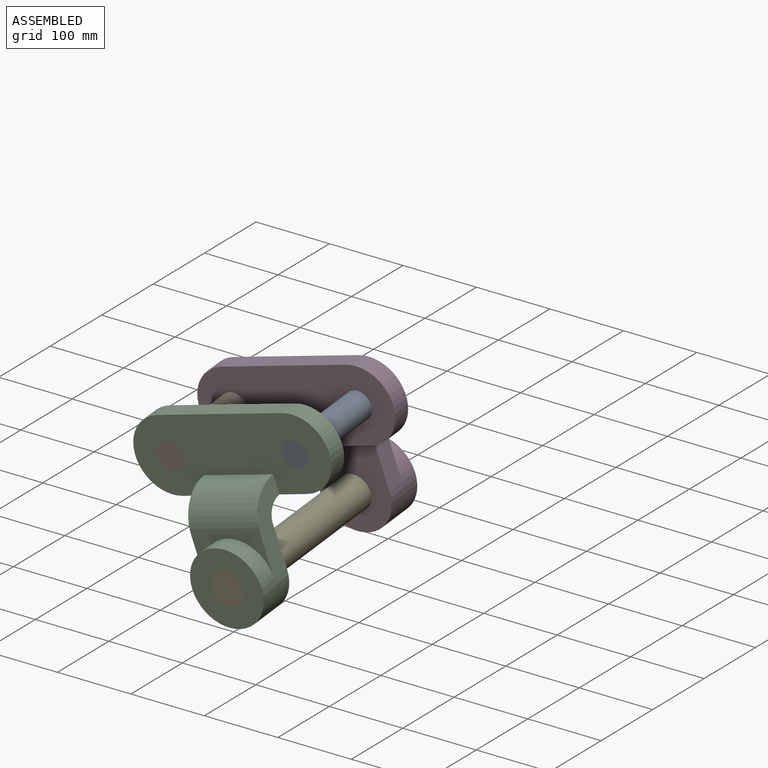
[diagram: assembled view]
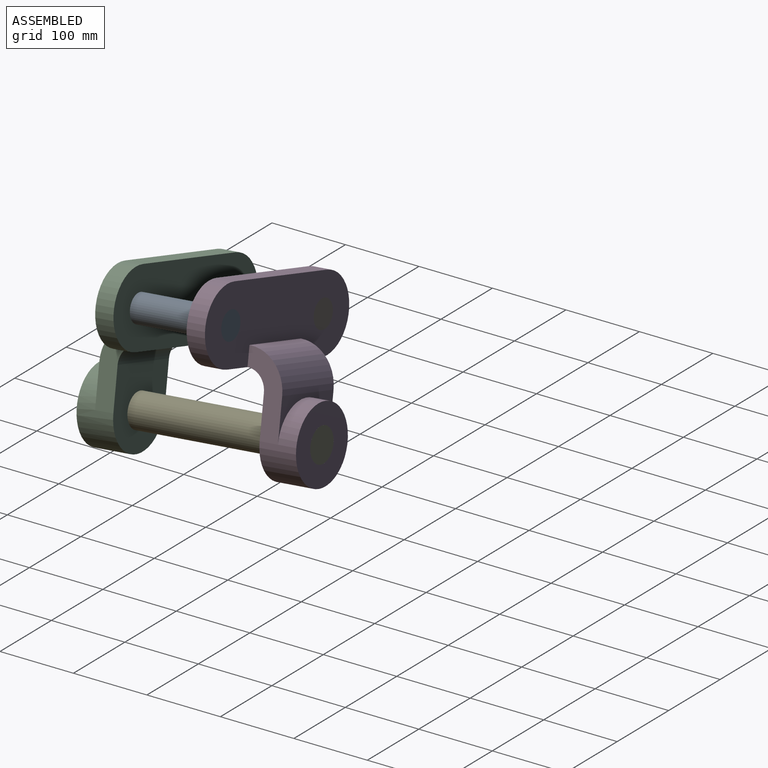
[diagram: assembled view, second angle]
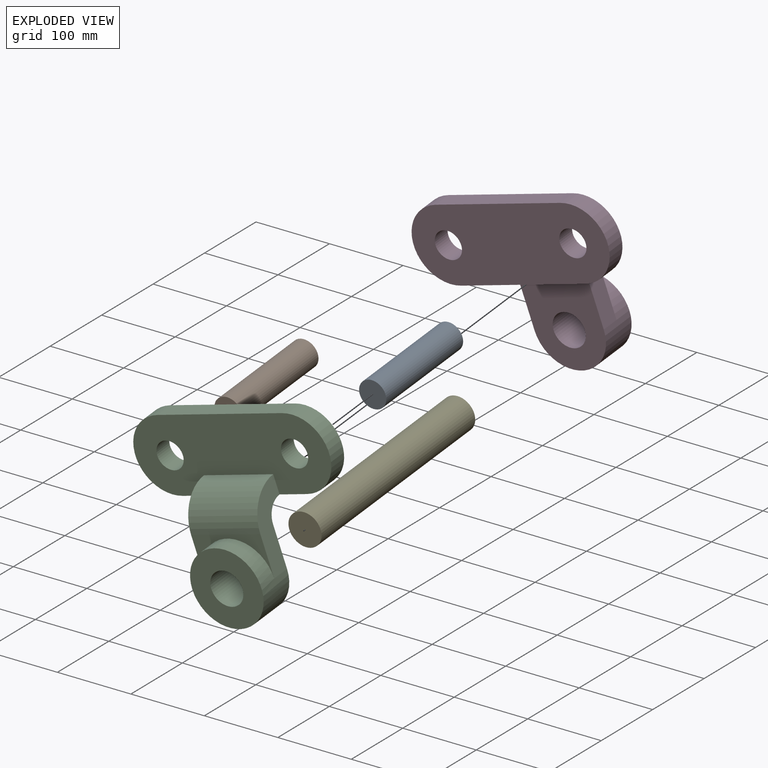
[diagram: exploded view]
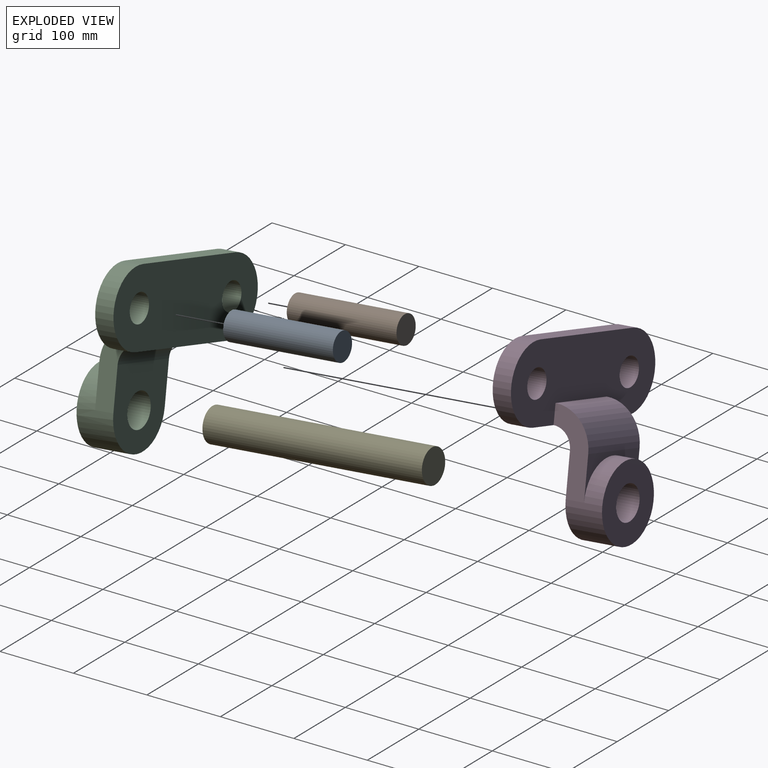
[diagram: exploded view, second angle]
ASSEMBLY  parts=5 mates=5
PART A: 3 faces, bbox 37x150x37 mm
  f0: cylinder r=18.5mm len=150mm, axis (0,1,0), area 17435.8mm2, adj f1,f2
  f1: plane 37x37mm, normal (0,-1,0), area 1075.2mm2, adj f0
  f2: plane 37x37mm, normal (0,1,0), area 1075.2mm2, adj f0
PART B: same geometry as A
PART C: 17 faces, bbox 280x100x230 mm
  f0: plane 180x25mm, normal (0,0,1), area 4500mm2, adj f1,f4,f6,f7,f13
  f1: cylinder r=50mm len=100mm, axis (0,1,0), area 3927mm2, adj f0,f2,f6,f7
  f2: plane 180x25mm, normal (0,0,-1), area 4500mm2, adj f1,f4,f6,f7
  f3: cylinder r=18.5mm len=37mm, axis (0,1,0), area 2906mm2, adj f6,f7
  f4: cylinder r=50mm len=100mm, axis (0,1,0), area 3927mm2, adj f0,f2,f6,f7
  f5: cylinder r=18.5mm len=37mm, axis (0,1,0), area 2906mm2, adj f6,f7
  f6: plane 280x100mm, normal (0,-1,0), area 21203.6mm2, adj f0,f1,f2,f3,f4,f5,f12,f14
  f7: plane 280x100mm, normal (0,1,0), area 23703.6mm2, adj f0,f1,f2,f3,f4,f5
  f8: cylinder r=50mm len=100mm, axis (0,1,0), area 11781mm2, adj f9,f10,f11,f14,f15
  f9: plane 100x100mm, normal (0,-1,0), area 6263.6mm2, adj f8,f16
  f10: plane 105x100mm, normal (0,1,0), area 7836.6mm2, adj f8,f13,f14,f15,f16
  f11: plane 100x55mm, normal (0,-1,0), area 1573mm2, adj f8,f12,f14,f15
  f12: cylinder r=50mm len=100mm, axis (-1,0,0), area 7854mm2, adj f6,f11,f14,f15
  f13: cylinder r=25mm len=100mm, axis (-1,0,0), area 3927mm2, adj f0,f10,f14,f15
  f14: plane 105x50mm, normal (1,0,0), area 2847.6mm2, adj f6,f8,f10,f11,f12,f13
  f15: plane 105x50mm, normal (-1,0,0), area 2847.6mm2, adj f6,f8,f10,f11,f12,f13
  f16: cylinder r=22.5mm len=50mm, axis (0,1,0), area 7068.6mm2, adj f9,f10
PART D: same geometry as C
PART E: 3 faces, bbox 45x300x45 mm
  f0: cylinder r=22.5mm len=300mm, axis (0,1,0), area 42411.5mm2, adj f1,f2
  f1: plane 45x45mm, normal (0,-1,0), area 1590.4mm2, adj f0
  f2: plane 45x45mm, normal (0,1,0), area 1590.4mm2, adj f0
PLACE A rot(axis=(0.01,1,0.05),163.7deg) t=(129.95,-123.32,501.94)mm
PLACE B rot(axis=(0.01,1,0.05),163.7deg) t=(-42.81,-118.48,451.63)mm
PLACE C rot(axis=(0.01,1,0.05),163.7deg) t=(-137.89,-223.85,241.32)mm
PLACE D rot(axis=(-0.99,0.01,-0.14),174.6deg) t=(-137.89,-124.31,250.89)mm
PLACE E rot(axis=(1,0,0),5.5deg) t=(-236.49,0.89,-6.56)mm fixed
MATE revolute E.f0 <-> D.f16  axis (0,1,0.1) through (-101.38,-12.83,136.25)mm
MATE fastened B.f0 <-> D.f3  axis (0,1,0.1) through (-224.27,-97.01,228.12)mm
MATE fastened B.f0 <-> C.f5  axis (0,-1,-0.1) through (-224.27,-246.32,213.78)mm
MATE revolute E.f0 <-> C.f16  axis (0,-1,-0.1) through (-101.38,-311.46,107.56)mm
MATE fastened A.f0 <-> C.f1  axis (0,-1,-0.1) through (-51.51,-251.15,264.09)mm
